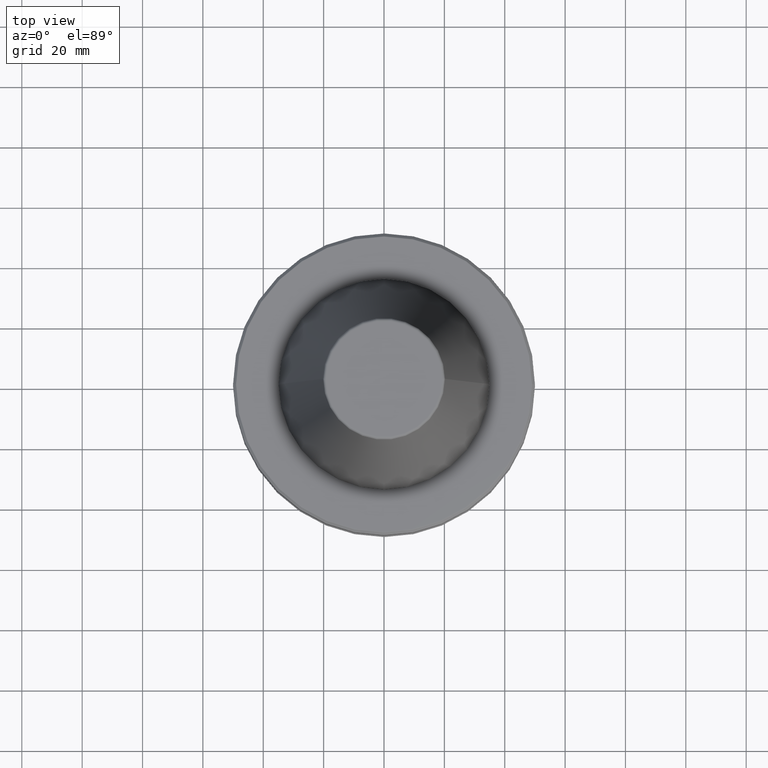
[diagram: clean part render]
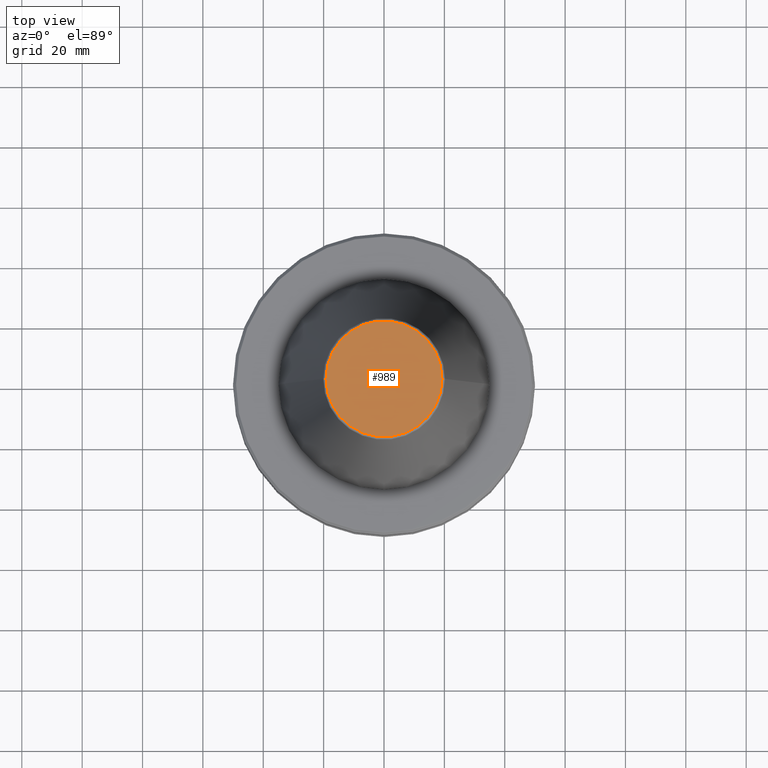
[diagram: same view with one face highlighted and labeled with its STEP entity id]
A machine part, top view. The second image highlights one B-rep face of the part: STEP entity #989.
In plain terms, the highlighted planar face has unit normal (0, -0, 1).
Its self-contained STEP definition (entity closure, byte-faithful):
#58 = CARTESIAN_POINT ( 'NONE',  ( 0.0000000000000000000, 0.0000000000000000000, 101.8000000000000000 ) ) ;
#130 = ORIENTED_EDGE ( 'NONE', *, *, #1128, .T. ) ;
#226 = DIRECTION ( 'NONE',  ( 1.000000000000000000, 0.0000000000000000000, 0.0000000000000000000 ) ) ;
#249 = CIRCLE ( 'NONE', #1841, 19.21428326502954000 ) ;
#378 = EDGE_CURVE ( 'NONE', #2044, #1777, #1759, .T. ) ;
#476 = DIRECTION ( 'NONE',  ( 0.0000000000000000000, -0.0000000000000000000, 1.000000000000000000 ) ) ;
#600 = AXIS2_PLACEMENT_3D ( 'NONE', #1127, #476, #1643 ) ;
#604 = FACE_OUTER_BOUND ( 'NONE', #1302, .T. ) ;
#730 = ORIENTED_EDGE ( 'NONE', *, *, #378, .T. ) ;
#813 = AXIS2_PLACEMENT_3D ( 'NONE', #957, #1123, #1132 ) ;
#957 = CARTESIAN_POINT ( 'NONE',  ( 0.0000000000000000000, 0.0000000000000000000, 101.8000000000000000 ) ) ;
#989 = ADVANCED_FACE ( 'NONE', ( #604 ), #1475, .T. ) ;
#1123 = DIRECTION ( 'NONE',  ( -0.0000000000000000000, -0.0000000000000000000, 1.000000000000000000 ) ) ;
#1127 = CARTESIAN_POINT ( 'NONE',  ( 0.0000000000000000000, 0.0000000000000000000, 101.8000000000000000 ) ) ;
#1128 = EDGE_CURVE ( 'NONE', #1777, #2044, #249, .T. ) ;
#1132 = DIRECTION ( 'NONE',  ( 1.000000000000000000, 0.0000000000000000000, 0.0000000000000000000 ) ) ;
#1194 = CARTESIAN_POINT ( 'NONE',  ( 19.21428326502954000, 0.0000000000000000000, 101.8000000000000000 ) ) ;
#1195 = DIRECTION ( 'NONE',  ( -0.0000000000000000000, -0.0000000000000000000, 1.000000000000000000 ) ) ;
#1302 = EDGE_LOOP ( 'NONE', ( #130, #730 ) ) ;
#1475 = PLANE ( 'NONE',  #600 ) ;
#1643 = DIRECTION ( 'NONE',  ( 1.000000000000000000, 0.0000000000000000000, 0.0000000000000000000 ) ) ;
#1649 = CARTESIAN_POINT ( 'NONE',  ( -19.21428326502954000, 2.413662457824347900E-015, 101.8000000000000000 ) ) ;
#1759 = CIRCLE ( 'NONE', #813, 19.21428326502954000 ) ;
#1777 = VERTEX_POINT ( 'NONE', #1194 ) ;
#1841 = AXIS2_PLACEMENT_3D ( 'NONE', #58, #1195, #226 ) ;
#2044 = VERTEX_POINT ( 'NONE', #1649 ) ;